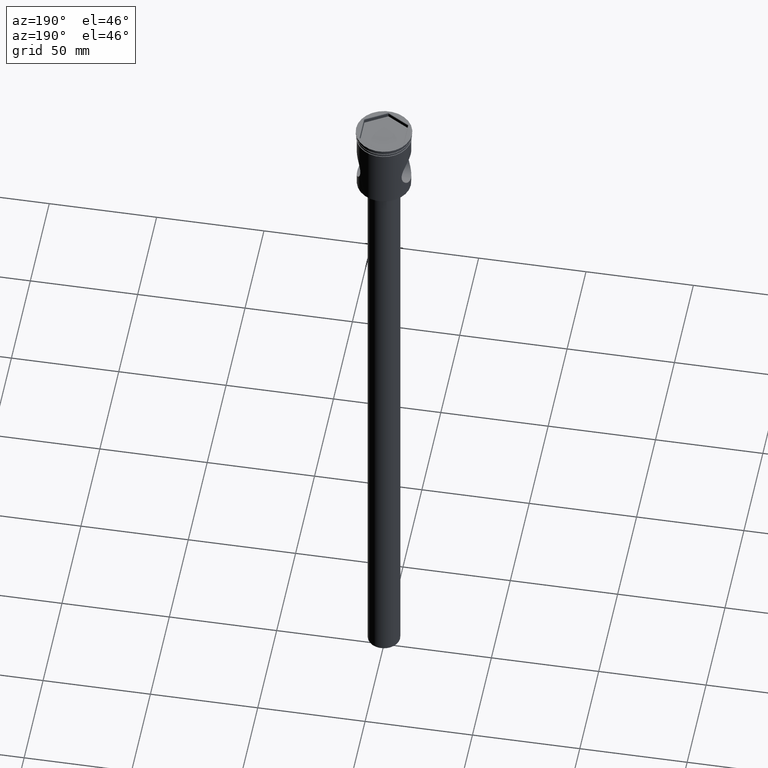
[diagram: clean part render]
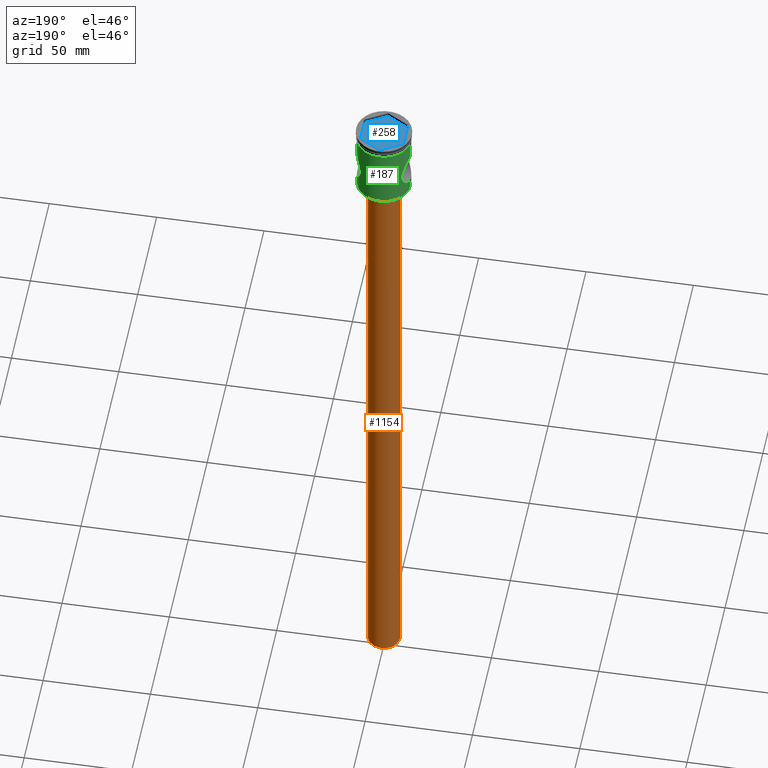
[diagram: same view with three faces highlighted in distinct colors, each labeled with its STEP entity id]
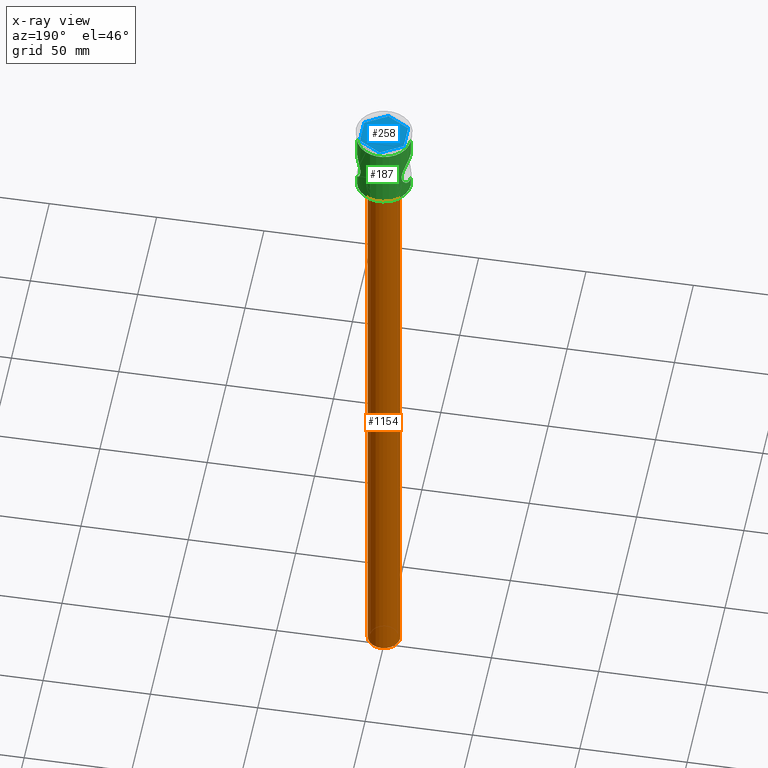
[diagram: x-ray of the same camera — body ghosted, the three highlighted faces saturated]
A machine part, auxiliary view with three faces highlighted in distinct colors.
The next image is the same camera in x-ray (body ghosted, the three faces saturated) — at least one of them is partly hidden behind the body in this view.
Their STEP definitions:

[orange] entity #1154 — the highlighted cylindrical surface (edge-blend (fillet) strip) has radius 7.5 mm, axis along (-0, -0, 1).
#9 = VECTOR ( 'NONE', #1214, 1000.000000000000000 ) ;
#14 = EDGE_CURVE ( 'NONE', #771, #854, #612, .T. ) ;
#36 = DIRECTION ( 'NONE',  ( -1.000000000000000000, 0.000000000000000000, 0.000000000000000000 ) ) ;
#60 = VECTOR ( 'NONE', #1450, 1000.000000000000000 ) ;
#143 = CARTESIAN_POINT ( 'NONE',  ( 7.500000000000000000, 0.000000000000000000, -333.5000000000000000 ) ) ;
#154 = DIRECTION ( 'NONE',  ( 0.000000000000000000, 0.000000000000000000, -1.000000000000000000 ) ) ;
#158 = CARTESIAN_POINT ( 'NONE',  ( 7.500000000000000000, 0.000000000000000000, -36.50000000000000711 ) ) ;
#181 = VERTEX_POINT ( 'NONE', #143 ) ;
#191 = DIRECTION ( 'NONE',  ( -1.000000000000000000, 0.000000000000000000, 0.000000000000000000 ) ) ;
#216 = CARTESIAN_POINT ( 'NONE',  ( 7.500000000000000000, 0.000000000000000000, -333.5000000000000000 ) ) ;
#447 = AXIS2_PLACEMENT_3D ( 'NONE', #1398, #450, #1042 ) ;
#450 = DIRECTION ( 'NONE',  ( -0.000000000000000000, -0.000000000000000000, 1.000000000000000000 ) ) ;
#466 = LINE ( 'NONE', #216, #9 ) ;
#490 = ORIENTED_EDGE ( 'NONE', *, *, #679, .F. ) ;
#533 = CARTESIAN_POINT ( 'NONE',  ( -7.500000000000000000, 9.184850993605147944E-16, -333.5000000000000000 ) ) ;
#559 = FACE_OUTER_BOUND ( 'NONE', #678, .T. ) ;
#612 = LINE ( 'NONE', #1094, #60 ) ;
#678 = EDGE_LOOP ( 'NONE', ( #1011, #1476, #762, #490 ) ) ;
#679 = EDGE_CURVE ( 'NONE', #181, #1520, #466, .T. ) ;
#758 = CARTESIAN_POINT ( 'NONE',  ( 0.000000000000000000, 0.000000000000000000, -36.50000000000000711 ) ) ;
#762 = ORIENTED_EDGE ( 'NONE', *, *, #1054, .T. ) ;
#771 = VERTEX_POINT ( 'NONE', #533 ) ;
#816 = CYLINDRICAL_SURFACE ( 'NONE', #447, 7.500000000000000000 ) ;
#854 = VERTEX_POINT ( 'NONE', #1519 ) ;
#943 = AXIS2_PLACEMENT_3D ( 'NONE', #758, #154, #191 ) ;
#1010 = EDGE_CURVE ( 'NONE', #771, #181, #1278, .T. ) ;
#1011 = ORIENTED_EDGE ( 'NONE', *, *, #1010, .F. ) ;
#1042 = DIRECTION ( 'NONE',  ( 1.000000000000000000, 0.000000000000000000, 0.000000000000000000 ) ) ;
#1054 = EDGE_CURVE ( 'NONE', #854, #1520, #1300, .T. ) ;
#1094 = CARTESIAN_POINT ( 'NONE',  ( -7.500000000000000000, 9.184850993605147944E-16, -333.5000000000000000 ) ) ;
#1113 = AXIS2_PLACEMENT_3D ( 'NONE', #1467, #1131, #36 ) ;
#1131 = DIRECTION ( 'NONE',  ( 0.000000000000000000, 0.000000000000000000, -1.000000000000000000 ) ) ;
#1154 = ADVANCED_FACE ( 'NONE', ( #559 ), #816, .T. ) ;
#1214 = DIRECTION ( 'NONE',  ( -0.000000000000000000, -0.000000000000000000, 1.000000000000000000 ) ) ;
#1278 = CIRCLE ( 'NONE', #1113, 7.500000000000000000 ) ;
#1300 = CIRCLE ( 'NONE', #943, 7.500000000000000000 ) ;
#1398 = CARTESIAN_POINT ( 'NONE',  ( 0.000000000000000000, 0.000000000000000000, -333.5000000000000000 ) ) ;
#1450 = DIRECTION ( 'NONE',  ( -0.000000000000000000, -0.000000000000000000, 1.000000000000000000 ) ) ;
#1467 = CARTESIAN_POINT ( 'NONE',  ( 0.000000000000000000, 0.000000000000000000, -333.5000000000000000 ) ) ;
#1476 = ORIENTED_EDGE ( 'NONE', *, *, #14, .T. ) ;
#1520 = VERTEX_POINT ( 'NONE', #158 ) ;
#1519 = CARTESIAN_POINT ( 'NONE',  ( -7.500000000000000000, 9.184850993605147944E-16, -36.50000000000000711 ) ) ;

[blue] entity #258 — the highlighted planar face has unit normal (-0, 0, 1).
#17 = ORIENTED_EDGE ( 'NONE', *, *, #769, .T. ) ;
#19 = DIRECTION ( 'NONE',  ( -0.000000000000000000, 0.000000000000000000, 1.000000000000000000 ) ) ;
#30 = CARTESIAN_POINT ( 'NONE',  ( 0.000000000000000000, 0.000000000000000000, -2.000000000000000000 ) ) ;
#53 = EDGE_CURVE ( 'NONE', #1121, #206, #1420, .T. ) ;
#76 = EDGE_CURVE ( 'NONE', #595, #1121, #616, .T. ) ;
#192 = ORIENTED_EDGE ( 'NONE', *, *, #1379, .T. ) ;
#206 = VERTEX_POINT ( 'NONE', #942 ) ;
#258 = ADVANCED_FACE ( 'NONE', ( #713 ), #1546, .T. ) ;
#271 = VECTOR ( 'NONE', #805, 1000.000000000000000 ) ;
#346 = VECTOR ( 'NONE', #413, 999.9999999999998863 ) ;
#360 = DIRECTION ( 'NONE',  ( 0.000000000000000000, -1.000000000000000000, 0.000000000000000000 ) ) ;
#364 = CARTESIAN_POINT ( 'NONE',  ( -10.20000000000000107, 5.888972745734180059, -2.000000000000000000 ) ) ;
#367 = VECTOR ( 'NONE', #812, 1000.000000000000114 ) ;
#413 = DIRECTION ( 'NONE',  ( -0.8660254037844387076, -0.4999999999999999445, 0.000000000000000000 ) ) ;
#551 = LINE ( 'NONE', #1134, #1320 ) ;
#556 = DIRECTION ( 'NONE',  ( 0.8660254037844387076, -0.4999999999999998890, 0.000000000000000000 ) ) ;
#595 = VERTEX_POINT ( 'NONE', #1304 ) ;
#616 = LINE ( 'NONE', #901, #1216 ) ;
#639 = EDGE_CURVE ( 'NONE', #206, #765, #933, .T. ) ;
#663 = ORIENTED_EDGE ( 'NONE', *, *, #639, .T. ) ;
#713 = FACE_OUTER_BOUND ( 'NONE', #934, .T. ) ;
#765 = VERTEX_POINT ( 'NONE', #1331 ) ;
#769 = EDGE_CURVE ( 'NONE', #765, #979, #1097, .T. ) ;
#805 = DIRECTION ( 'NONE',  ( 2.945714899484625339E-16, 1.000000000000000000, 0.000000000000000000 ) ) ;
#812 = DIRECTION ( 'NONE',  ( -0.8660254037844387076, 0.4999999999999997780, 0.000000000000000000 ) ) ;
#820 = EDGE_CURVE ( 'NONE', #1479, #595, #551, .T. ) ;
#823 = ORIENTED_EDGE ( 'NONE', *, *, #76, .T. ) ;
#842 = CARTESIAN_POINT ( 'NONE',  ( -10.20000000000000107, 5.888972745734180059, -2.000000000000000000 ) ) ;
#859 = DIRECTION ( 'NONE',  ( 1.000000000000000000, 0.000000000000000000, 0.000000000000000000 ) ) ;
#870 = ORIENTED_EDGE ( 'NONE', *, *, #53, .T. ) ;
#901 = CARTESIAN_POINT ( 'NONE',  ( -8.673617379884035472E-16, -11.77794549146836367, -2.000000000000000000 ) ) ;
#933 = LINE ( 'NONE', #1409, #367 ) ;
#934 = EDGE_LOOP ( 'NONE', ( #663, #17, #192, #1151, #823, #870 ) ) ;
#942 = CARTESIAN_POINT ( 'NONE',  ( 10.20000000000000284, 5.888972745734183611, -2.000000000000000000 ) ) ;
#951 = LINE ( 'NONE', #364, #1516 ) ;
#979 = VERTEX_POINT ( 'NONE', #842 ) ;
#1088 = CARTESIAN_POINT ( 'NONE',  ( -10.20000000000000107, -5.888972745734181835, -2.000000000000000000 ) ) ;
#1097 = LINE ( 'NONE', #1296, #346 ) ;
#1109 = AXIS2_PLACEMENT_3D ( 'NONE', #30, #19, #859 ) ;
#1121 = VERTEX_POINT ( 'NONE', #1241 ) ;
#1134 = CARTESIAN_POINT ( 'NONE',  ( -10.20000000000000107, -5.888972745734181835, -2.000000000000000000 ) ) ;
#1151 = ORIENTED_EDGE ( 'NONE', *, *, #820, .T. ) ;
#1161 = CARTESIAN_POINT ( 'NONE',  ( 10.19999999999999929, -5.888972745734185388, -2.000000000000000000 ) ) ;
#1216 = VECTOR ( 'NONE', #1498, 1000.000000000000000 ) ;
#1241 = CARTESIAN_POINT ( 'NONE',  ( 10.19999999999999929, -5.888972745734185388, -2.000000000000000000 ) ) ;
#1296 = CARTESIAN_POINT ( 'NONE',  ( 1.734723475976807094E-15, 11.77794549146836367, -2.000000000000000000 ) ) ;
#1304 = CARTESIAN_POINT ( 'NONE',  ( -8.673617379884035472E-16, -11.77794549146836367, -2.000000000000000000 ) ) ;
#1320 = VECTOR ( 'NONE', #556, 1000.000000000000114 ) ;
#1331 = CARTESIAN_POINT ( 'NONE',  ( 1.734723475976807094E-15, 11.77794549146836367, -2.000000000000000000 ) ) ;
#1379 = EDGE_CURVE ( 'NONE', #979, #1479, #951, .T. ) ;
#1409 = CARTESIAN_POINT ( 'NONE',  ( 10.20000000000000284, 5.888972745734183611, -2.000000000000000000 ) ) ;
#1420 = LINE ( 'NONE', #1161, #271 ) ;
#1479 = VERTEX_POINT ( 'NONE', #1088 ) ;
#1498 = DIRECTION ( 'NONE',  ( 0.8660254037844388186, 0.4999999999999996669, 0.000000000000000000 ) ) ;
#1516 = VECTOR ( 'NONE', #360, 1000.000000000000000 ) ;
#1546 = PLANE ( 'NONE',  #1109 ) ;

[green] entity #187 — the highlighted cylindrical surface (edge-blend (fillet) strip) has radius 12.5 mm, axis along (-0, -0, 1).
#1 = CARTESIAN_POINT ( 'NONE',  ( -11.32275814528974500, 5.311017539796694997, -26.50426606429732601 ) ) ;
#2 = CARTESIAN_POINT ( 'NONE',  ( -9.650481006454381117, 7.945901119098953025, -19.42646661241498052 ) ) ;
#7 = CARTESIAN_POINT ( 'NONE',  ( 12.49999999999999645, 0.000000000000000000, 0.000000000000000000 ) ) ;
#11 = CARTESIAN_POINT ( 'NONE',  ( -9.615781582082339796, 7.986738915949612938, -21.03451077291008531 ) ) ;
#24 = CARTESIAN_POINT ( 'NONE',  ( -12.49999999999999645, 1.530808498934191127E-15, -33.29999999999999716 ) ) ;
#32 = CARTESIAN_POINT ( 'NONE',  ( -10.24171529436143402, 7.170737983946684935, -16.91536847051583692 ) ) ;
#66 = ORIENTED_EDGE ( 'NONE', *, *, #231, .T. ) ;
#67 = CARTESIAN_POINT ( 'NONE',  ( 11.82354718861211573, 4.063371894608730273, -13.60388813298232513 ) ) ;
#89 = CARTESIAN_POINT ( 'NONE',  ( 9.604276544737977872, 8.000492014107765115, -19.96508625629939004 ) ) ;
#91 = CARTESIAN_POINT ( 'NONE',  ( -10.76964293615448653, 6.354292206984882618, -15.61311065325000591 ) ) ;
#99 = DIRECTION ( 'NONE',  ( -0.000000000000000000, -0.000000000000000000, 1.000000000000000000 ) ) ;
#120 = CARTESIAN_POINT ( 'NONE',  ( 12.49999999999999289, 0.5455086926773380362, -28.50000000000000000 ) ) ;
#122 = CARTESIAN_POINT ( 'NONE',  ( -11.97255694559601125, 3.600821400007697459, -27.64858792036709545 ) ) ;
#130 = CARTESIAN_POINT ( 'NONE',  ( 12.22805391727019675, 2.640680350465369308, -28.06978779834291515 ) ) ;
#132 = ORIENTED_EDGE ( 'NONE', *, *, #293, .T. ) ;
#147 = CARTESIAN_POINT ( 'NONE',  ( 9.952560460729568348, 7.563483000275685875, -17.88020587650935056 ) ) ;
#148 = CARTESIAN_POINT ( 'NONE',  ( -12.45574482229450020, 1.085222749987466040, -28.43070192023093412 ) ) ;
#182 = CARTESIAN_POINT ( 'NONE',  ( 12.49999999999999645, -3.475392982267206074E-20, -12.50000000000000178 ) ) ;
#184 = CARTESIAN_POINT ( 'NONE',  ( -12.49999999999999645, 1.530843252841608374E-15, -12.50000000000000178 ) ) ;
#187 = ADVANCED_FACE ( 'NONE', ( #1496 ), #1049, .T. ) ;
#195 = CARTESIAN_POINT ( 'NONE',  ( -9.833011243020195025, 7.718267162390876734, -22.62081358739451176 ) ) ;
#222 = CARTESIAN_POINT ( 'NONE',  ( -11.22925266099212571, 5.494954958430610326, -14.68017047912132789 ) ) ;
#231 = EDGE_CURVE ( 'NONE', #427, #1310, #577, .T. ) ;
#233 = DIRECTION ( 'NONE',  ( 1.000000000000000000, 0.000000000000000000, 0.000000000000000000 ) ) ;
#235 = EDGE_CURVE ( 'NONE', #427, #576, #1019, .T. ) ;
#242 = CARTESIAN_POINT ( 'NONE',  ( -11.58231855636714513, 4.706562070356852701, -14.02588132130155962 ) ) ;
#249 = CIRCLE ( 'NONE', #638, 12.49999999999999645 ) ;
#251 = AXIS2_PLACEMENT_3D ( 'NONE', #641, #629, #288 ) ;
#252 = CARTESIAN_POINT ( 'NONE',  ( -12.22681975302657520, 2.645907749991195601, -28.06777968347508434 ) ) ;
#253 = CARTESIAN_POINT ( 'NONE',  ( -9.947500648090192854, 7.573601934444265105, -17.87138436146137366 ) ) ;
#257 = CARTESIAN_POINT ( 'NONE',  ( 12.49999999999999645, 0.000000000000000000, -28.50000000000000355 ) ) ;
#259 = CARTESIAN_POINT ( 'NONE',  ( -11.82492588981186543, 4.059453444830931623, -27.39848256787114167 ) ) ;
#270 = CARTESIAN_POINT ( 'NONE',  ( 10.68141965030587848, 6.495024738260809727, -25.17753358840528932 ) ) ;
#281 = CARTESIAN_POINT ( 'NONE',  ( 9.951847861737379120, 7.567903109691757280, -23.14472692481474425 ) ) ;
#288 = DIRECTION ( 'NONE',  ( 1.000000000000000000, 0.000000000000000000, 0.000000000000000000 ) ) ;
#293 = EDGE_CURVE ( 'NONE', #1383, #576, #1455, .T. ) ;
#299 = CARTESIAN_POINT ( 'NONE',  ( 11.74563317290944831, 4.282692903467038903, -13.73805650301568093 ) ) ;
#304 = CARTESIAN_POINT ( 'NONE',  ( 12.32774079225238495, 2.134726252461476292, -12.77147006255823136 ) ) ;
#326 = CARTESIAN_POINT ( 'NONE',  ( -10.41397768299478166, 6.921782864204723218, -24.54315654720842232 ) ) ;
#335 = VERTEX_POINT ( 'NONE', #1493 ) ;
#338 = CARTESIAN_POINT ( 'NONE',  ( 9.831927431485986801, 7.719646222588846030, -18.38418844340872127 ) ) ;
#368 = DIRECTION ( 'NONE',  ( -0.000000000000000000, -0.000000000000000000, 1.000000000000000000 ) ) ;
#375 = CARTESIAN_POINT ( 'NONE',  ( 10.77326865999855166, 6.342037053953381687, -25.38299917530804350 ) ) ;
#376 = CARTESIAN_POINT ( 'NONE',  ( -12.42914744973298191, 1.355224675475571683, -28.38894657095907803 ) ) ;
#387 = CARTESIAN_POINT ( 'NONE',  ( -9.604845950803452936, 7.999808392904742327, -19.96072037956296086 ) ) ;
#392 = LINE ( 'NONE', #718, #660 ) ;
#394 = VECTOR ( 'NONE', #99, 1000.000000000000000 ) ;
#427 = VERTEX_POINT ( 'NONE', #184 ) ;
#434 = CARTESIAN_POINT ( 'NONE',  ( 12.49999999999999645, 0.000000000000000000, -33.29999999999999716 ) ) ;
#459 = CARTESIAN_POINT ( 'NONE',  ( 10.95569943340932717, 6.032167288263485361, -15.22028665405100512 ) ) ;
#469 = CARTESIAN_POINT ( 'NONE',  ( -12.49134899006260824, 0.5368360781239408519, -12.51349676487751594 ) ) ;
#476 = CARTESIAN_POINT ( 'NONE',  ( -10.02253038761470982, 7.470924704462464483, -23.37288695449094433 ) ) ;
#478 = DIRECTION ( 'NONE',  ( -0.000000000000000000, -0.000000000000000000, 1.000000000000000000 ) ) ;
#485 = DIRECTION ( 'NONE',  ( -1.000000000000000000, 0.000000000000000000, 0.000000000000000000 ) ) ;
#487 = CARTESIAN_POINT ( 'NONE',  ( 10.95759851502932669, 6.017955333637137194, -25.77724630296188479 ) ) ;
#496 = DIRECTION ( 'NONE',  ( -0.000000000000000000, -0.000000000000000000, 1.000000000000000000 ) ) ;
#503 = VERTEX_POINT ( 'NONE', #580 ) ;
#529 = VERTEX_POINT ( 'NONE', #849 ) ;
#547 = CARTESIAN_POINT ( 'NONE',  ( 11.97039897339418246, 3.607881330226543781, -13.35503377591462559 ) ) ;
#563 = CARTESIAN_POINT ( 'NONE',  ( -12.43066710745117298, 1.341388092945101862, -12.60866053316501834 ) ) ;
#570 = CARTESIAN_POINT ( 'NONE',  ( 9.650015180279874372, 7.946443617263751591, -19.43182631452544484 ) ) ;
#576 = VERTEX_POINT ( 'NONE', #1137 ) ;
#577 = LINE ( 'NONE', #953, #394 ) ;
#580 = CARTESIAN_POINT ( 'NONE',  ( 12.50000000000000000, 0.000000000000000000, -3.999999999999996447 ) ) ;
#582 = CARTESIAN_POINT ( 'NONE',  ( -12.22865895483605314, 2.638290072440495848, -12.92921996348514924 ) ) ;
#591 = CARTESIAN_POINT ( 'NONE',  ( -12.50000000000000000, 1.530808498934191521E-15, -3.999999999999996447 ) ) ;
#598 = CARTESIAN_POINT ( 'NONE',  ( 12.46447579769007774, 1.079199628273470157, -28.44481018307721243 ) ) ;
#618 = CARTESIAN_POINT ( 'NONE',  ( 9.662429422409399393, 7.930242071786063995, -21.58801890745425212 ) ) ;
#621 = CARTESIAN_POINT ( 'NONE',  ( -9.604607193058786407, 8.000095042092121744, -20.76536489131949992 ) ) ;
#629 = DIRECTION ( 'NONE',  ( -0.000000000000000000, -0.000000000000000000, 1.000000000000000000 ) ) ;
#638 = AXIS2_PLACEMENT_3D ( 'NONE', #735, #478, #485 ) ;
#641 = CARTESIAN_POINT ( 'NONE',  ( 0.000000000000000000, 0.000000000000000000, -3.999999999999996447 ) ) ;
#646 = ORIENTED_EDGE ( 'NONE', *, *, #899, .F. ) ;
#649 = CARTESIAN_POINT ( 'NONE',  ( 12.45636595211378861, 1.077990071471292666, -12.56832314098377346 ) ) ;
#660 = VECTOR ( 'NONE', #496, 1000.000000000000000 ) ;
#697 = DIRECTION ( 'NONE',  ( -0.000000000000000000, -0.000000000000000000, 1.000000000000000000 ) ) ;
#712 = CARTESIAN_POINT ( 'NONE',  ( 10.41350288148657377, 6.922544769963280054, -16.45796141815630520 ) ) ;
#718 = CARTESIAN_POINT ( 'NONE',  ( 12.49999999999999645, 0.000000000000000000, 0.000000000000000000 ) ) ;
#721 = CARTESIAN_POINT ( 'NONE',  ( -12.04078069653766647, 3.366168072378722620, -27.76202050384523190 ) ) ;
#724 = CARTESIAN_POINT ( 'NONE',  ( -9.660877953051818068, 7.932130301633682379, -21.57471352266809106 ) ) ;
#725 = EDGE_LOOP ( 'NONE', ( #788, #132, #1114, #66, #1180, #1243, #1052, #646 ) ) ;
#735 = CARTESIAN_POINT ( 'NONE',  ( 0.000000000000000000, 0.000000000000000000, -33.29999999999999716 ) ) ;
#737 = CARTESIAN_POINT ( 'NONE',  ( 9.825351555881612242, 7.728608913096384647, -22.63340818634064533 ) ) ;
#745 = CARTESIAN_POINT ( 'NONE',  ( 9.616846497738414712, 7.985458352474513966, -21.05224936486945353 ) ) ;
#788 = ORIENTED_EDGE ( 'NONE', *, *, #1371, .T. ) ;
#791 = CARTESIAN_POINT ( 'NONE',  ( -10.68057655226026803, 6.496405684036826500, -25.17560278568680943 ) ) ;
#798 = CARTESIAN_POINT ( 'NONE',  ( -10.24506394556385125, 7.166030281330027840, -24.09455026104629738 ) ) ;
#801 = CARTESIAN_POINT ( 'NONE',  ( -11.32051845556725489, 5.304942531477344403, -14.50641544213543455 ) ) ;
#807 = CARTESIAN_POINT ( 'NONE',  ( 11.32358097886961446, 5.309510908151877651, -14.49404386253077881 ) ) ;
#834 = CARTESIAN_POINT ( 'NONE',  ( -12.49999999999999822, 0.2686376769289312016, -12.50000000000000533 ) ) ;
#849 = CARTESIAN_POINT ( 'NONE',  ( 12.49999999999999645, -3.475392982267206074E-20, -12.50000000000000178 ) ) ;
#850 = CARTESIAN_POINT ( 'NONE',  ( 12.32937529947440147, 2.124696089697953649, -28.23112845639077761 ) ) ;
#865 = VECTOR ( 'NONE', #368, 1000.000000000000000 ) ;
#867 = CARTESIAN_POINT ( 'NONE',  ( 11.32278361962054802, 5.310903790031502147, -26.50427824932999243 ) ) ;
#869 = CARTESIAN_POINT ( 'NONE',  ( -11.49979938796715118, 4.920626020369353704, -26.82866744699284567 ) ) ;
#899 = EDGE_CURVE ( 'NONE', #1058, #335, #392, .T. ) ;
#903 = CARTESIAN_POINT ( 'NONE',  ( 12.22838080166956054, 2.639999966342853277, -12.92964855857681350 ) ) ;
#906 = EDGE_CURVE ( 'NONE', #529, #503, #1206, .T. ) ;
#923 = CARTESIAN_POINT ( 'NONE',  ( 0.000000000000000000, 0.000000000000000000, 0.000000000000000000 ) ) ;
#953 = CARTESIAN_POINT ( 'NONE',  ( -12.49999999999999645, 1.530808498934191127E-15, 0.000000000000000000 ) ) ;
#970 = CARTESIAN_POINT ( 'NONE',  ( 11.83084558445469980, 4.061114290533304860, -27.41204444593460821 ) ) ;
#984 = EDGE_CURVE ( 'NONE', #335, #529, #1225, .T. ) ;
#1019 = B_SPLINE_CURVE_WITH_KNOTS ( 'NONE', 3,
 ( #1057, #834, #469, #1166, #563, #1308, #582, #1187, #1064, #1040, #1541, #242, #1521, #801, #222, #1175, #91, #1095, #32, #253, #1468, #2, #387, #621, #11, #724, #1438, #1127, #195, #1394, #476, #798, #326, #791, #1046, #1527, #1201, #1, #869, #1226, #259, #122, #721, #252, #1349, #376, #148, #1102, #1327, #1235 ),
 .UNSPECIFIED., .F., .F.,
 ( 4, 2, 2, 2, 2, 2, 2, 2, 2, 2, 2, 2, 2, 2, 2, 2, 2, 2, 2, 2, 2, 2, 2, 2, 4 ),
 ( 0.02576999226182778366, 0.02657439273090745832, 0.02737879319998713298, 0.02898759413814647884, 0.02979199460722615350, 0.03059639507630582123, 0.03140079554538549589, 0.03220519601446516361, 0.03381399695262450600, 0.03542279789078384145, 0.03703159882894318383, 0.03864039976710252622, 0.03944480023618218700, 0.04024920070526185473, 0.04105360117434152245, 0.04185800164342118324, 0.04346680258158051868, 0.04427120305066018641, 0.04507560351973985413, 0.04668440445789921039, 0.04748880492697887812, 0.04829320539605855278, 0.04990200633421790211, 0.05070640680329757677, 0.05151080727237725143 ),
 .UNSPECIFIED. ) ;
#1022 = CARTESIAN_POINT ( 'NONE',  ( 12.49999999999999822, 0.2689421781267094524, -12.50000000000000178 ) ) ;
#1040 = CARTESIAN_POINT ( 'NONE',  ( -11.82426725651903610, 4.061341696050350336, -13.60264837205234301 ) ) ;
#1046 = CARTESIAN_POINT ( 'NONE',  ( -10.77171733329285530, 6.344673314144587017, -25.37958406506655251 ) ) ;
#1049 = CYLINDRICAL_SURFACE ( 'NONE', #1511, 12.49999999999999645 ) ;
#1052 = ORIENTED_EDGE ( 'NONE', *, *, #984, .F. ) ;
#1057 = CARTESIAN_POINT ( 'NONE',  ( -12.49999999999999645, 1.530843252841608374E-15, -12.50000000000000178 ) ) ;
#1058 = VERTEX_POINT ( 'NONE', #434 ) ;
#1064 = CARTESIAN_POINT ( 'NONE',  ( -11.97168173856675466, 3.603696557166357284, -13.35287981243517308 ) ) ;
#1073 = CARTESIAN_POINT ( 'NONE',  ( 11.50119995780600846, 4.917095492503141152, -14.16884486330757120 ) ) ;
#1080 = CARTESIAN_POINT ( 'NONE',  ( 11.97893811598799729, 3.606041726093997646, -27.66040104288469692 ) ) ;
#1095 = CARTESIAN_POINT ( 'NONE',  ( -10.41381587689204302, 6.922042856426296353, -16.45722377159888694 ) ) ;
#1100 = CARTESIAN_POINT ( 'NONE',  ( 10.24149294623592965, 7.171072586796541692, -16.91585289741309595 ) ) ;
#1102 = CARTESIAN_POINT ( 'NONE',  ( -12.49104983426664717, 0.5449417703514869427, -28.48603655335807261 ) ) ;
#1106 = CARTESIAN_POINT ( 'NONE',  ( 12.43000214087199851, 1.347259841825428239, -12.60970857887207153 ) ) ;
#1114 = ORIENTED_EDGE ( 'NONE', *, *, #235, .F. ) ;
#1127 = CARTESIAN_POINT ( 'NONE',  ( -9.780592607289706919, 7.784260626568318742, -22.36450508717212671 ) ) ;
#1137 = CARTESIAN_POINT ( 'NONE',  ( -12.49999999999999645, 0.000000000000000000, -28.50000000000000355 ) ) ;
#1166 = CARTESIAN_POINT ( 'NONE',  ( -12.45680753857803147, 1.072351860696458381, -12.56763034230890774 ) ) ;
#1175 = CARTESIAN_POINT ( 'NONE',  ( -10.95468395994246968, 6.033861169773390820, -15.22247198273765179 ) ) ;
#1180 = ORIENTED_EDGE ( 'NONE', *, *, #1494, .F. ) ;
#1187 = CARTESIAN_POINT ( 'NONE',  ( -12.04102128605738464, 3.365482873782087658, -13.23757297846051451 ) ) ;
#1194 = CIRCLE ( 'NONE', #251, 12.50000000000000000 ) ;
#1201 = CARTESIAN_POINT ( 'NONE',  ( -11.04913184632836121, 5.848685773200739568, -25.96419292266337919 ) ) ;
#1206 = LINE ( 'NONE', #7, #865 ) ;
#1213 = DIRECTION ( 'NONE',  ( -0.000000000000000000, -0.000000000000000000, 1.000000000000000000 ) ) ;
#1224 = CARTESIAN_POINT ( 'NONE',  ( 9.695983281617307270, 7.889400511741192723, -21.85205995452213301 ) ) ;
#1225 = B_SPLINE_CURVE_WITH_KNOTS ( 'NONE', 3,
 ( #257, #120, #598, #850, #130, #1080, #970, #1444, #867, #1341, #487, #375, #270, #1332, #1317, #281, #737, #1224, #618, #745, #1348, #89, #570, #1454, #338, #147, #1528, #1100, #712, #1407, #459, #807, #1073, #299, #67, #547, #1263, #903, #304, #1106, #649, #1368, #1022, #182 ),
 .UNSPECIFIED., .F., .F.,
 ( 4, 2, 2, 2, 2, 2, 2, 2, 2, 2, 2, 2, 2, 2, 2, 2, 2, 2, 2, 2, 2, 4 ),
 ( 0.000000000000000000, 0.001610624516364215879, 0.003221249032728431758, 0.004831873549092647636, 0.006442498065456863515, 0.007247810323638976225, 0.008053122581821088935, 0.009663747098185310885, 0.01127437161454953631, 0.01207968387273164815, 0.01288499613091376172, 0.01449562064727799755, 0.01530093290546011807, 0.01610624516364224379, 0.01771686968000649870, 0.01932749419637075361, 0.02093811871273501199, 0.02174343097091713944, 0.02254874322909926690, 0.02415936774546352528, 0.02496468000364565273, 0.02576999226182778019 ),
 .UNSPECIFIED. ) ;
#1226 = CARTESIAN_POINT ( 'NONE',  ( -11.74577852983650494, 4.282367724400621967, -27.26220930574858059 ) ) ;
#1235 = CARTESIAN_POINT ( 'NONE',  ( -12.49999999999999645, 0.000000000000000000, -28.50000000000000355 ) ) ;
#1243 = ORIENTED_EDGE ( 'NONE', *, *, #906, .F. ) ;
#1263 = CARTESIAN_POINT ( 'NONE',  ( 12.03968295628938812, 3.370349911399050047, -13.23978673405736117 ) ) ;
#1308 = CARTESIAN_POINT ( 'NONE',  ( -12.32814927920563264, 2.133064077394900337, -12.77081634138414401 ) ) ;
#1310 = VERTEX_POINT ( 'NONE', #591 ) ;
#1317 = CARTESIAN_POINT ( 'NONE',  ( 10.24633185769106802, 7.164154995734958398, -24.09758546550434488 ) ) ;
#1327 = CARTESIAN_POINT ( 'NONE',  ( -12.49999999999999645, 0.2724455289350976028, -28.50000000000000000 ) ) ;
#1332 = CARTESIAN_POINT ( 'NONE',  ( 10.41453676133786033, 6.920961814154462211, -24.54462048307798128 ) ) ;
#1341 = CARTESIAN_POINT ( 'NONE',  ( 11.04973041360231534, 5.847541344671410180, -25.96539333561140950 ) ) ;
#1342 = CARTESIAN_POINT ( 'NONE',  ( -12.49999999999999645, 1.530808498934191127E-15, 0.000000000000000000 ) ) ;
#1348 = CARTESIAN_POINT ( 'NONE',  ( 9.604895432773121300, 7.999748985399197210, -20.77841958597585403 ) ) ;
#1349 = CARTESIAN_POINT ( 'NONE',  ( -12.32614486164619372, 2.144181392186815138, -28.22599079984303927 ) ) ;
#1368 = CARTESIAN_POINT ( 'NONE',  ( 12.49132987171840270, 0.5383245889663403894, -12.51352599534948418 ) ) ;
#1371 = EDGE_CURVE ( 'NONE', #1058, #1383, #249, .T. ) ;
#1383 = VERTEX_POINT ( 'NONE', #24 ) ;
#1394 = CARTESIAN_POINT ( 'NONE',  ( -9.953764986108037505, 7.561899278404374591, -23.12434326371112192 ) ) ;
#1407 = CARTESIAN_POINT ( 'NONE',  ( 10.77000853576665840, 6.353706358841936463, -15.61224821672883678 ) ) ;
#1438 = CARTESIAN_POINT ( 'NONE',  ( -9.694572521403607368, 7.891132293869996595, -21.84205955273028010 ) ) ;
#1444 = CARTESIAN_POINT ( 'NONE',  ( 11.50038868166273787, 4.919615502726670364, -26.82980181432884237 ) ) ;
#1454 = CARTESIAN_POINT ( 'NONE',  ( 9.778867081615890910, 7.786427190026567580, -18.64438907348872476 ) ) ;
#1455 = LINE ( 'NONE', #1342, #1459 ) ;
#1459 = VECTOR ( 'NONE', #1213, 1000.000000000000000 ) ;
#1468 = CARTESIAN_POINT ( 'NONE',  ( -9.823930086259025529, 7.730428572254550268, -18.37155159375936719 ) ) ;
#1493 = CARTESIAN_POINT ( 'NONE',  ( 12.49999999999999645, 0.000000000000000000, -28.50000000000000355 ) ) ;
#1494 = EDGE_CURVE ( 'NONE', #503, #1310, #1194, .T. ) ;
#1496 = FACE_OUTER_BOUND ( 'NONE', #725, .T. ) ;
#1511 = AXIS2_PLACEMENT_3D ( 'NONE', #923, #697, #233 ) ;
#1521 = CARTESIAN_POINT ( 'NONE',  ( -11.49685725809058567, 4.911092195449596076, -14.17966420493785051 ) ) ;
#1527 = CARTESIAN_POINT ( 'NONE',  ( -10.95618371808392233, 6.020532543485914267, -25.77431588019686615 ) ) ;
#1528 = CARTESIAN_POINT ( 'NONE',  ( 10.02037738876441253, 7.473797691934480625, -17.63469963449613331 ) ) ;
#1541 = CARTESIAN_POINT ( 'NONE',  ( -11.74602063590885059, 4.281685285502878635, -13.73737400827888422 ) ) ;